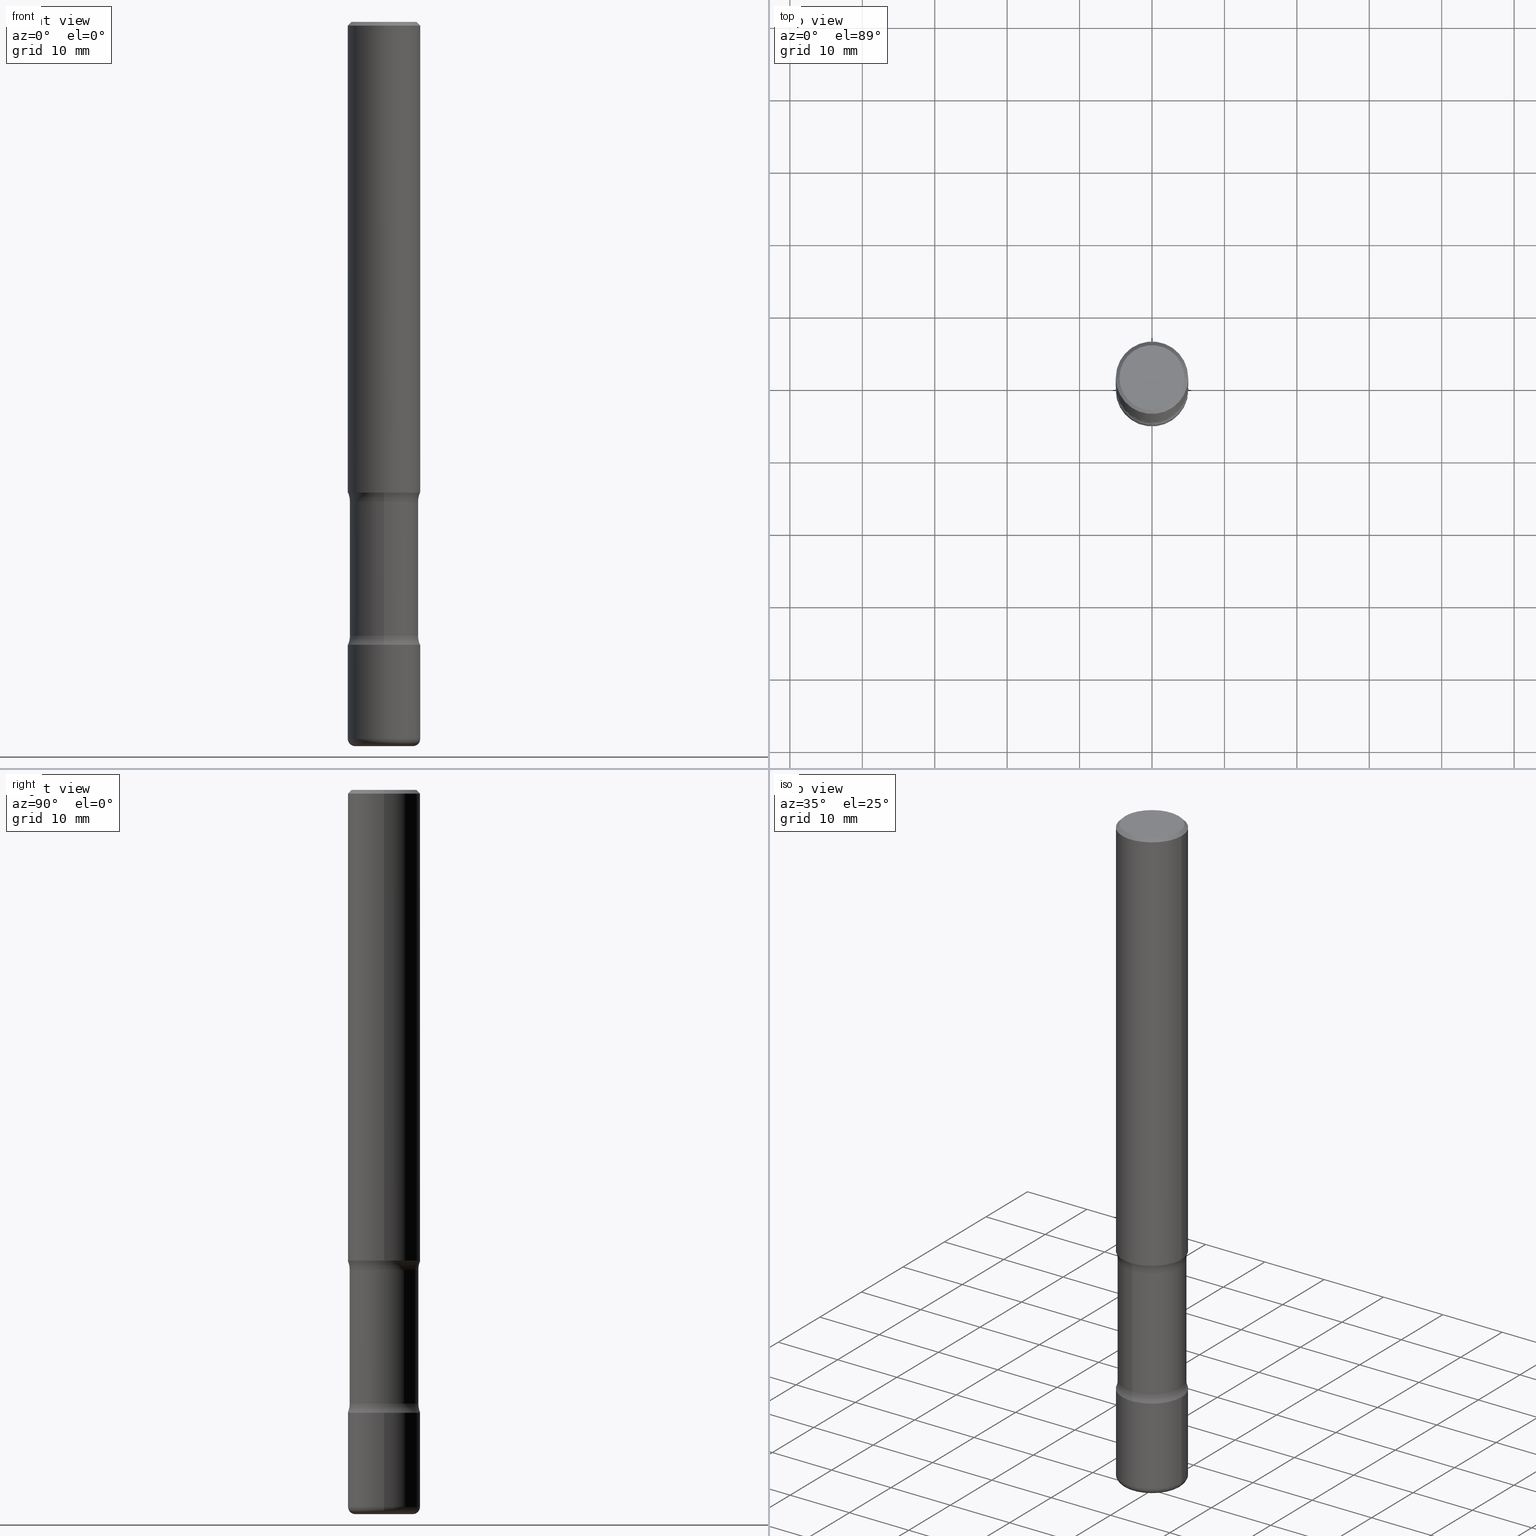
[diagram: canonical four-view strip — front | top / right | iso, engineering-drawing reading convention]
A machine part, canonical four-view strip (front | top / right | iso — engineering-drawing reading convention). The complete STEP part file that produces these views, byte-faithful:
ISO-10303-21;
HEADER;
FILE_DESCRIPTION (( 'STEP AP203' ),
    '1' );
FILE_NAME ('44779.STEP',
    '2024-03-02T03:10:26',
    ( '' ),
    ( '' ),
    'SwSTEP 2.0',
    'SolidWorks 2023',
    '' );
FILE_SCHEMA (( 'CONFIG_CONTROL_DESIGN' ));
ENDSEC;

DATA;
#1 = EDGE_CURVE ( 'NONE', #533, #75, #344, .T. ) ;
#2 = DIRECTION ( 'NONE',  ( 6.982962677686266711E-15, 1.000000000000000000, -2.927241354046892304E-15 ) ) ;
#3 = AXIS2_PLACEMENT_3D ( 'NONE', #111, #400, #6 ) ;
#4 = VECTOR ( 'NONE', #336, 39.37007874015748143 ) ;
#5 = EDGE_CURVE ( 'NONE', #75, #533, #189, .T. ) ;
#6 = DIRECTION ( 'NONE',  ( -1.000000000000000000, 6.982962677686265922E-15, -4.876176775795935793E-29 ) ) ;
#7 = CARTESIAN_POINT ( 'NONE',  ( 8.158923594815368929E-29, -1.164878055458961151E-14, -3.336343352317407973 ) ) ;
#8 = ORIENTED_EDGE ( 'NONE', *, *, #186, .F. ) ;
#9 = CALENDAR_DATE ( 2024, 1, 3 ) ;
#10 = DIRECTION ( 'NONE',  ( 1.000000000000000000, -6.982962677686269077E-15, 4.883557194083114022E-29 ) ) ;
#11 = AXIS2_PLACEMENT_3D ( 'NONE', #436, #255, #164 ) ;
#12 = CC_DESIGN_PERSON_AND_ORGANIZATION_ASSIGNMENT ( #386, #556, ( #85 ) ) ;
#13 = APPROVAL_DATE_TIME ( #110, #445 ) ;
#14 = VECTOR ( 'NONE', #139, 39.37007874015748143 ) ;
#15 = AXIS2_PLACEMENT_3D ( 'NONE', #68, #204, #20 ) ;
#16 = DIRECTION ( 'NONE',  ( 1.000000000000000000, -6.982962677686265133E-15, 0.000000000000000000 ) ) ;
#17 = DATE_AND_TIME ( #9, #149 ) ;
#18 = CARTESIAN_POINT ( 'NONE',  ( 4.890937612370289799E-31, -6.982962677686315028E-17, -0.02000000000000006981 ) ) ;
#19 = DIRECTION ( 'NONE',  ( 6.982962677686266711E-15, 1.000000000000000000, -2.927241354046893093E-15 ) ) ;
#20 = DIRECTION ( 'NONE',  ( 1.000000000000000000, -6.982962677686269077E-15, 4.883557194083114022E-29 ) ) ;
#21 = CALENDAR_DATE ( 2024, 1, 3 ) ;
#22 = EDGE_CURVE ( 'NONE', #365, #119, #503, .T. ) ;
#23 = DIRECTION ( 'NONE',  ( 2.445468806185136597E-29, -3.491481338843145583E-15, -1.000000000000000000 ) ) ;
#24 = CLOSED_SHELL ( 'NONE', ( #141, #277, #162, #430, #48, #87, #175, #236 ) ) ;
#25 = CARTESIAN_POINT ( 'NONE',  ( 8.279868283981634472E-29, -1.182145751705512057E-14, -3.385799999999999699 ) ) ;
#26 = AXIS2_PLACEMENT_3D ( 'NONE', #402, #180, #188 ) ;
#27 = AXIS2_PLACEMENT_3D ( 'NONE', #122, #495, #497 ) ;
#28 = DIRECTION ( 'NONE',  ( -6.982962677686266711E-15, -1.000000000000000000, 3.491481338843145583E-15 ) ) ;
#29 = ADVANCED_FACE ( 'NONE', ( #396 ), #528, .T. ) ;
#30 = ORIENTED_EDGE ( 'NONE', *, *, #373, .F. ) ;
#31 = EDGE_LOOP ( 'NONE', ( #404, #123 ) ) ;
#32 = LINE ( 'NONE', #343, #14 ) ;
#33 = CARTESIAN_POINT ( 'NONE',  ( 0.000000000000000000, 0.000000000000000000, 0.000000000000000000 ) ) ;
#34 = CARTESIAN_POINT ( 'NONE',  ( -1.315500491072630234E-15, -0.1866500000000093362, -2.608456647682591889 ) ) ;
#35 = ADVANCED_FACE ( 'NONE', ( #73 ), #521, .T. ) ;
#36 = EDGE_LOOP ( 'NONE', ( #427, #380, #44, #461 ) ) ;
#37 = DIRECTION ( 'NONE',  ( 1.000000000000000000, -6.982962677686266711E-15, 4.875932113059883053E-29 ) ) ;
#38 = AXIS2_PLACEMENT_3D ( 'NONE', #223, #438, #144 ) ;
#39 = AXIS2_PLACEMENT_3D ( 'NONE', #82, #554, #176 ) ;
#40 = ORIENTED_EDGE ( 'NONE', *, *, #79, .T. ) ;
#41 = ORIENTED_EDGE ( 'NONE', *, *, #314, .T. ) ;
#42 = APPLICATION_PROTOCOL_DEFINITION ( 'international standard', 'config_control_design', 1994, #90 ) ;
#43 = DESIGN_CONTEXT ( 'detailed design', #90, 'design' ) ;
#44 = ORIENTED_EDGE ( 'NONE', *, *, #500, .T. ) ;
#45 = PERSON_AND_ORGANIZATION ( #72, #520 ) ;
#46 = CLOSED_SHELL ( 'NONE', ( #35, #184, #226, #421, #482, #60 ) ) ;
#47 = TOROIDAL_SURFACE ( 'NONE', #361, 0.3116500000000000936, 0.1250000000000000278 ) ;
#48 = ADVANCED_FACE ( 'NONE', ( #508 ), #498, .F. ) ;
#49 = CIRCLE ( 'NONE', #105, 0.1250000000000000278 ) ;
#50 = PRODUCT_DEFINITION_SHAPE ( 'NONE', 'NONE',  #306 ) ;
#51 = DIRECTION ( 'NONE',  ( 1.000000000000000000, -6.982962677686265922E-15, 4.876176775795935793E-29 ) ) ;
#52 = DIRECTION ( 'NONE',  ( 1.000000000000000000, -6.982962677686266711E-15, 4.875932113059883053E-29 ) ) ;
#53 = DIRECTION ( 'NONE',  ( -1.000000000000000000, 6.982962677686265922E-15, -4.876176775795935793E-29 ) ) ;
#54 = DIRECTION ( 'NONE',  ( 1.000000000000000000, -6.982962677686269866E-15, 0.000000000000000000 ) ) ;
#55 = AXIS2_PLACEMENT_3D ( 'NONE', #322, #457, #202 ) ;
#56 = CC_DESIGN_APPROVAL ( #445, ( #106 ) ) ;
#57 = EDGE_LOOP ( 'NONE', ( #179, #63 ) ) ;
#58 = DIRECTION ( 'NONE',  ( -2.445468806185136597E-29, 3.491481338843145583E-15, 1.000000000000000000 ) ) ;
#59 = CARTESIAN_POINT ( 'NONE',  ( 1.916782435662395970E-28, -8.411947649234456076E-17, -3.937000000000000277 ) ) ;
#60 = ADVANCED_FACE ( 'NONE', ( #194 ), #452, .F. ) ;
#61 = EDGE_LOOP ( 'NONE', ( #158, #340 ) ) ;
#62 = DIRECTION ( 'NONE',  ( 6.982962677686266711E-15, 1.000000000000000000, -2.927241354046892699E-15 ) ) ;
#63 = ORIENTED_EDGE ( 'NONE', *, *, #205, .T. ) ;
#64 = PERSON_AND_ORGANIZATION ( #72, #520 ) ;
#65 = DIRECTION ( 'NONE',  ( -2.445468806185136597E-29, 3.491481338843145583E-15, 1.000000000000000000 ) ) ;
#66 = APPROVAL_STATUS ( 'not_yet_approved' ) ;
#67 = EDGE_LOOP ( 'NONE', ( #86, #259, #81, #439 ) ) ;
#68 = CARTESIAN_POINT ( 'NONE',  ( 9.531459218987189074E-29, -1.360839766627504420E-14, -3.897600000000000176 ) ) ;
#69 = EDGE_LOOP ( 'NONE', ( #88, #341, #417, #496 ) ) ;
#70 = ORIENTED_EDGE ( 'NONE', *, *, #79, .F. ) ;
#71 = CARTESIAN_POINT ( 'NONE',  ( 2.176240318500987949E-15, 0.3116499999999908788, -2.608456647682593665 ) ) ;
#72 = PERSON ( 'UNSPECIFIED', 'UNSPECIFIED', 'UNSPECIFIED', ('UNSPECIFIED'), ('UNSPECIFIED'), ('UNSPECIFIED') ) ;
#73 = FACE_OUTER_BOUND ( 'NONE', #67, .T. ) ;
#74 = LINE ( 'NONE', #489, #273 ) ;
#75 = VERTEX_POINT ( 'NONE', #161 ) ;
#76 = ADVANCED_FACE ( 'NONE', ( #317 ), #464, .T. ) ;
#77 = ORIENTED_EDGE ( 'NONE', *, *, #413, .T. ) ;
#78 = DIRECTION ( 'NONE',  ( -2.445468806185136597E-29, 3.491481338843145583E-15, 1.000000000000000000 ) ) ;
#79 = EDGE_CURVE ( 'NONE', #80, #215, #269, .T. ) ;
#80 = VERTEX_POINT ( 'NONE', #517 ) ;
#81 = ORIENTED_EDGE ( 'NONE', *, *, #287, .F. ) ;
#82 = CARTESIAN_POINT ( 'NONE',  ( 8.151697017269320442E-29, -1.165912942494680306E-14, -3.336343352317407973 ) ) ;
#83 = AXIS2_PLACEMENT_3D ( 'NONE', #18, #156, #284 ) ;
#84 = APPROVAL_PERSON_ORGANIZATION ( #192, #553, #274 ) ;
#85 = PRODUCT ( '44779', '44779', '', ( #294 ) ) ;
#86 = ORIENTED_EDGE ( 'NONE', *, *, #177, .T. ) ;
#87 = ADVANCED_FACE ( 'NONE', ( #555 ), #337, .F. ) ;
#88 = ORIENTED_EDGE ( 'NONE', *, *, #437, .F. ) ;
#89 = CARTESIAN_POINT ( 'NONE',  ( -0.1968500000000001082, -1.131622421632132460E-14, -3.385799999999999699 ) ) ;
#90 = APPLICATION_CONTEXT ( 'configuration controlled 3d designs of mechanical parts and assemblies' ) ;
#91 = EDGE_CURVE ( 'NONE', #385, #494, #32, .T. ) ;
#92 = FACE_OUTER_BOUND ( 'NONE', #257, .T. ) ;
#93 = COORDINATED_UNIVERSAL_TIME_OFFSET ( 5, 0, .BEHIND. ) ;
#94 = TOROIDAL_SURFACE ( 'NONE', #407, 0.1574500000000002009, 0.03939999999999977548 ) ;
#95 = AXIS2_PLACEMENT_3D ( 'NONE', #560, #208, #378 ) ;
#96 = PLANE ( 'NONE',  #3 ) ;
#97 = CARTESIAN_POINT ( 'NONE',  ( 0.1968499999999998307, -1.420318657638187938E-15, -0.02000000000000006981 ) ) ;
#98 = CC_DESIGN_PERSON_AND_ORGANIZATION_ASSIGNMENT ( #412, #316, ( #370 ) ) ;
#99 = CARTESIAN_POINT ( 'NONE',  ( 9.531459218987189074E-29, -1.360839766627504420E-14, -3.897600000000000176 ) ) ;
#100 = CYLINDRICAL_SURFACE ( 'NONE', #201, 0.1968499999999999694 ) ;
#101 = ORIENTED_EDGE ( 'NONE', *, *, #186, .T. ) ;
#102 = FACE_OUTER_BOUND ( 'NONE', #69, .T. ) ;
#103 = CARTESIAN_POINT ( 'NONE',  ( -1.043851414335219820E-46, 1.490343170380447200E-32, 4.268512490100411279E-18 ) ) ;
#104 = VECTOR ( 'NONE', #523, 39.37007874015748143 ) ;
#105 = AXIS2_PLACEMENT_3D ( 'NONE', #197, #153, #244 ) ;
#106 = PRODUCT_DEFINITION_FORMATION_WITH_SPECIFIED_SOURCE ( 'ANY', '', #85, .NOT_KNOWN. ) ;
#107 = CALENDAR_DATE ( 2024, 1, 3 ) ;
#108 = EDGE_LOOP ( 'NONE', ( #470, #360, #557, #448 ) ) ;
#109 = ORIENTED_EDGE ( 'NONE', *, *, #1, .F. ) ;
#110 = DATE_AND_TIME ( #107, #302 ) ;
#111 = CARTESIAN_POINT ( 'NONE',  ( 1.234936949548814815E-15, 0.1768499999999998129, -6.153342185293594620E-16 ) ) ;
#112 = PERSON_AND_ORGANIZATION ( #72, #520 ) ;
#113 = CARTESIAN_POINT ( 'NONE',  ( 6.283517401289684484E-29, -9.243970108248332967E-15, -2.608456647682592333 ) ) ;
#114 = AXIS2_PLACEMENT_3D ( 'NONE', #388, #262, #393 ) ;
#115 = APPROVAL_PERSON_ORGANIZATION ( #64, #445, #187 ) ;
#116 = EDGE_LOOP ( 'NONE', ( #253, #243, #383, #501 ) ) ;
#117 = CARTESIAN_POINT ( 'NONE',  ( 0.1968499999999998307, -1.420318657638187938E-15, -0.02000000000000006981 ) ) ;
#118 = CARTESIAN_POINT ( 'NONE',  ( 6.257954675027765161E-29, -8.934700746099610252E-15, -2.559000000000000163 ) ) ;
#119 = VERTEX_POINT ( 'NONE', #476 ) ;
#120 = VERTEX_POINT ( 'NONE', #97 ) ;
#121 = EDGE_CURVE ( 'NONE', #514, #206, #527, .T. ) ;
#122 = CARTESIAN_POINT ( 'NONE',  ( 2.176240318501006882E-15, 0.3116499999999883808, -3.336343352317409305 ) ) ;
#123 = ORIENTED_EDGE ( 'NONE', *, *, #22, .T. ) ;
#124 = DIRECTION ( 'NONE',  ( 1.000000000000000000, -6.982962677686266711E-15, 4.876176775795935793E-29 ) ) ;
#125 = CARTESIAN_POINT ( 'NONE',  ( 9.531459218987189074E-29, -1.360839766627504420E-14, -3.897600000000000176 ) ) ;
#126 = CARTESIAN_POINT ( 'NONE',  ( 9.627810689950881427E-29, -1.374596203102546184E-14, -3.936999999999999389 ) ) ;
#127 = CIRCLE ( 'NONE', #441, 0.1968500000000001082 ) ;
#128 = AXIS2_PLACEMENT_3D ( 'NONE', #113, #535, #319 ) ;
#129 = EDGE_CURVE ( 'NONE', #182, #456, #333, .T. ) ;
#130 = DIRECTION ( 'NONE',  ( -2.445468806185136877E-29, 3.491481338843145188E-15, 1.000000000000000000 ) ) ;
#131 = ORIENTED_EDGE ( 'NONE', *, *, #472, .F. ) ;
#132 = CARTESIAN_POINT ( 'NONE',  ( -0.1574500000000002009, -1.248964812882076424E-14, -3.897600000000000176 ) ) ;
#133 = ORIENTED_EDGE ( 'NONE', *, *, #268, .F. ) ;
#134 = EDGE_CURVE ( 'NONE', #494, #135, #127, .T. ) ;
#135 = VERTEX_POINT ( 'NONE', #169 ) ;
#136 = CARTESIAN_POINT ( 'NONE',  ( 1.303369983790204808E-15, 0.1866499999999908233, -2.608456647682592777 ) ) ;
#137 = AXIS2_PLACEMENT_3D ( 'NONE', #198, #238, #454 ) ;
#138 = ADVANCED_FACE ( 'NONE', ( #216 ), #100, .T. ) ;
#139 = DIRECTION ( 'NONE',  ( -2.445468806185136877E-29, 3.491481338843145188E-15, 1.000000000000000000 ) ) ;
#140 = APPROVAL_ROLE ( '' ) ;
#141 = ADVANCED_FACE ( 'NONE', ( #483 ), #266, .T. ) ;
#142 = CARTESIAN_POINT ( 'NONE',  ( -0.1968499999999998307, 1.304766576325677324E-15, -0.02000000000000006981 ) ) ;
#143 = DIRECTION ( 'NONE',  ( 6.982962677686265922E-15, 1.000000000000000000, -2.775563112689115117E-15 ) ) ;
#144 = DIRECTION ( 'NONE',  ( 6.982962677686265922E-15, 1.000000000000000000, -3.282229987566573640E-15 ) ) ;
#145 = ORIENTED_EDGE ( 'NONE', *, *, #328, .T. ) ;
#146 = DIRECTION ( 'NONE',  ( 2.591588243807108620E-29, -3.282229987566573640E-15, -1.000000000000000000 ) ) ;
#147 = DIRECTION ( 'NONE',  ( -2.445468806185136597E-29, 3.491481338843145583E-15, 1.000000000000000000 ) ) ;
#148 = AXIS2_PLACEMENT_3D ( 'NONE', #526, #147, #487 ) ;
#149 = LOCAL_TIME ( 22, 10, 26.00000000000000000, #410 ) ;
#150 = DIRECTION ( 'NONE',  ( 1.000000000000000000, -6.982962677686263555E-15, 0.000000000000000000 ) ) ;
#151 = DATE_TIME_ROLE ( 'classification_date' ) ;
#152 = CARTESIAN_POINT ( 'NONE',  ( 1.374596203102624439E-15, 0.1968499999999882288, -3.385800000000000143 ) ) ;
#153 = DIRECTION ( 'NONE',  ( 1.000000000000000000, -6.860497997771530774E-15, 4.843361469599724329E-29 ) ) ;
#154 = PERSON_AND_ORGANIZATION ( #72, #520 ) ;
#155 = VECTOR ( 'NONE', #525, 39.37007874015748143 ) ;
#156 = DIRECTION ( 'NONE',  ( 2.445468806185136597E-29, -3.491481338843145583E-15, -1.000000000000000000 ) ) ;
#157 = DIRECTION ( 'NONE',  ( -1.000000000000000000, 6.982962677686266711E-15, 0.000000000000000000 ) ) ;
#158 = ORIENTED_EDGE ( 'NONE', *, *, #314, .F. ) ;
#159 = DIRECTION ( 'NONE',  ( -2.445468806185136597E-29, 3.491481338843145583E-15, 1.000000000000000000 ) ) ;
#160 = CARTESIAN_POINT ( 'NONE',  ( 8.158923594815368929E-29, -1.164878055458961151E-14, -3.336343352317407973 ) ) ;
#161 = CARTESIAN_POINT ( 'NONE',  ( 0.1574500000000002009, -1.484542950462716817E-14, -3.936999999999999389 ) ) ;
#162 = ADVANCED_FACE ( 'NONE', ( #394 ), #398, .F. ) ;
#163 = CARTESIAN_POINT ( 'NONE',  ( 8.279868283981634472E-29, -1.182145751705512057E-14, -3.385799999999999699 ) ) ;
#164 = DIRECTION ( 'NONE',  ( 1.000000000000000000, -6.982962677686269866E-15, 0.000000000000000000 ) ) ;
#165 = AXIS2_PLACEMENT_3D ( 'NONE', #267, #359, #51 ) ;
#166 = AXIS2_PLACEMENT_3D ( 'NONE', #132, #260, #426 ) ;
#167 = ORIENTED_EDGE ( 'NONE', *, *, #261, .T. ) ;
#168 =( LENGTH_UNIT ( ) NAMED_UNIT ( * ) SI_UNIT ( $, .METRE. ) );
#169 = CARTESIAN_POINT ( 'NONE',  ( 0.1968500000000001082, -1.319605372015766376E-14, -3.385799999999999699 ) ) ;
#170 = DIRECTION ( 'NONE',  ( -2.445468806185136597E-29, 3.491481338843145583E-15, 1.000000000000000000 ) ) ;
#171 = CARTESIAN_POINT ( 'NONE',  ( 1.303369983790238926E-15, 0.1866499999999864101, -3.937000000000000721 ) ) ;
#172 = EDGE_CURVE ( 'NONE', #543, #507, #428, .T. ) ;
#173 = ORIENTED_EDGE ( 'NONE', *, *, #275, .T. ) ;
#174 = CARTESIAN_POINT ( 'NONE',  ( 0.000000000000000000, 0.000000000000000000, 0.000000000000000000 ) ) ;
#175 = ADVANCED_FACE ( 'NONE', ( #102 ), #491, .F. ) ;
#176 = DIRECTION ( 'NONE',  ( 6.982962677686266711E-15, 1.000000000000000000, -2.927241354046893093E-15 ) ) ;
#177 = EDGE_CURVE ( 'NONE', #293, #385, #309, .T. ) ;
#178 = CARTESIAN_POINT ( 'NONE',  ( 1.303369983790223149E-15, 0.1866499999999883530, -3.336343352317408861 ) ) ;
#179 = ORIENTED_EDGE ( 'NONE', *, *, #469, .T. ) ;
#180 = DIRECTION ( 'NONE',  ( 2.591588243807108620E-29, -3.282229987566573640E-15, -1.000000000000000000 ) ) ;
#181 = AXIS2_PLACEMENT_3D ( 'NONE', #118, #531, #232 ) ;
#182 = VERTEX_POINT ( 'NONE', #178 ) ;
#183 = LINE ( 'NONE', #357, #104 ) ;
#184 = ADVANCED_FACE ( 'NONE', ( #310 ), #94, .T. ) ;
#185 = DIRECTION ( 'NONE',  ( 2.591588243807108620E-29, -3.282229987566573640E-15, -1.000000000000000000 ) ) ;
#186 = EDGE_CURVE ( 'NONE', #215, #80, #280, .T. ) ;
#187 = APPROVAL_ROLE ( '' ) ;
#188 = DIRECTION ( 'NONE',  ( 6.982962677686266711E-15, 1.000000000000000000, -2.927241354046892699E-15 ) ) ;
#189 = CIRCLE ( 'NONE', #263, 0.1574500000000002009 ) ;
#190 = AXIS2_PLACEMENT_3D ( 'NONE', #103, #403, #52 ) ;
#191 = AXIS2_PLACEMENT_3D ( 'NONE', #242, #23, #157 ) ;
#192 = PERSON_AND_ORGANIZATION ( #72, #520 ) ;
#193 = CARTESIAN_POINT ( 'NONE',  ( -0.1968499999999999694, 1.398703375343756999E-15, -9.682923725166782276E-30 ) ) ;
#194 = FACE_OUTER_BOUND ( 'NONE', #251, .T. ) ;
#195 = APPROVAL_STATUS ( 'not_yet_approved' ) ;
#196 = DIRECTION ( 'NONE',  ( 1.000000000000000000, -6.982962677686266711E-15, 4.876176775795935793E-29 ) ) ;
#197 = CARTESIAN_POINT ( 'NONE',  ( -2.138074201005416717E-15, -0.3116500000000117510, -3.336343352317407085 ) ) ;
#198 = CARTESIAN_POINT ( 'NONE',  ( 8.279868283981634472E-29, -1.182145751705512057E-14, -3.385799999999999699 ) ) ;
#199 = DATE_AND_TIME ( #21, #529 ) ;
#200 = CARTESIAN_POINT ( 'NONE',  ( -1.315500491072608935E-15, -0.1866500000000116399, -3.336343352317407529 ) ) ;
#201 = AXIS2_PLACEMENT_3D ( 'NONE', #460, #419, #224 ) ;
#202 = DIRECTION ( 'NONE',  ( 1.000000000000000000, -6.982962677686265133E-15, 0.000000000000000000 ) ) ;
#203 = VERTEX_POINT ( 'NONE', #142 ) ;
#204 = DIRECTION ( 'NONE',  ( -2.445468806185136597E-29, 3.491481338843145583E-15, 1.000000000000000000 ) ) ;
#205 = EDGE_CURVE ( 'NONE', #541, #292, #301, .T. ) ;
#206 = VERTEX_POINT ( 'NONE', #353 ) ;
#207 = ORIENTED_EDGE ( 'NONE', *, *, #261, .F. ) ;
#208 = DIRECTION ( 'NONE',  ( -2.445468806185136597E-29, 3.491481338843145583E-15, 1.000000000000000000 ) ) ;
#209 = DIRECTION ( 'NONE',  ( -6.982962677686265922E-15, -1.000000000000000000, 3.282229987566573640E-15 ) ) ;
#210 = CIRCLE ( 'NONE', #323, 0.03939999999999978936 ) ;
#211 = CIRCLE ( 'NONE', #465, 0.1768499999999998129 ) ;
#212 = ORIENTED_EDGE ( 'NONE', *, *, #442, .T. ) ;
#213 = DIRECTION ( 'NONE',  ( 2.591588243807108620E-29, -3.282229987566573640E-15, -1.000000000000000000 ) ) ;
#214 = EDGE_CURVE ( 'NONE', #206, #120, #488, .T. ) ;
#215 = VERTEX_POINT ( 'NONE', #446 ) ;
#216 = FACE_OUTER_BOUND ( 'NONE', #217, .T. ) ;
#217 = EDGE_LOOP ( 'NONE', ( #41, #297, #325, #484 ) ) ;
#218 = CARTESIAN_POINT ( 'NONE',  ( 0.000000000000000000, 0.000000000000000000, 0.000000000000000000 ) ) ;
#219 = AXIS2_PLACEMENT_3D ( 'NONE', #499, #422, #209 ) ;
#220 = APPROVAL_STATUS ( 'not_yet_approved' ) ;
#221 = VECTOR ( 'NONE', #558, 39.37007874015748143 ) ;
#222 = ADVANCED_FACE ( 'NONE', ( #305 ), #227, .F. ) ;
#223 = CARTESIAN_POINT ( 'NONE',  ( 6.283517401289684484E-29, -9.243970108248332967E-15, -2.608456647682592333 ) ) ;
#224 = DIRECTION ( 'NONE',  ( 1.000000000000000000, -6.982962677686266711E-15, 4.876176775795935793E-29 ) ) ;
#225 = AXIS2_PLACEMENT_3D ( 'NONE', #371, #366, #19 ) ;
#226 = ADVANCED_FACE ( 'NONE', ( #315 ), #447, .T. ) ;
#227 = PLANE ( 'NONE',  #165 ) ;
#228 = DATE_TIME_ROLE ( 'creation_date' ) ;
#229 = CYLINDRICAL_SURFACE ( 'NONE', #254, 0.1866500000000000381 ) ;
#230 = COORDINATED_UNIVERSAL_TIME_OFFSET ( 5, 0, .BEHIND. ) ;
#231 = DIRECTION ( 'NONE',  ( -2.445468806185136597E-29, 3.491481338843145583E-15, 1.000000000000000000 ) ) ;
#232 = DIRECTION ( 'NONE',  ( 6.982962677686265922E-15, 1.000000000000000000, -3.282229987566573640E-15 ) ) ;
#233 = AXIS2_PLACEMENT_3D ( 'NONE', #332, #65, #372 ) ;
#234 = LOCAL_TIME ( 22, 10, 26.00000000000000000, #300 ) ;
#235 = DIRECTION ( 'NONE',  ( -2.445468806185136597E-29, 3.491481338843145583E-15, 1.000000000000000000 ) ) ;
#236 = ADVANCED_FACE ( 'NONE', ( #270 ), #229, .T. ) ;
#237 = APPROVAL_DATE_TIME ( #435, #335 ) ;
#238 = DIRECTION ( 'NONE',  ( 2.438088387897960049E-29, -3.491481338843145188E-15, -1.000000000000000000 ) ) ;
#239 = CARTESIAN_POINT ( 'NONE',  ( 0.1768499999999998129, -1.316798864272041155E-15, 4.268512490109333727E-18 ) ) ;
#240 = DATE_AND_TIME ( #537, #281 ) ;
#241 = ORIENTED_EDGE ( 'NONE', *, *, #345, .F. ) ;
#242 = CARTESIAN_POINT ( 'NONE',  ( 4.890937612370289799E-31, -6.982962677686315028E-17, -0.02000000000000006981 ) ) ;
#243 = ORIENTED_EDGE ( 'NONE', *, *, #515, .T. ) ;
#244 = DIRECTION ( 'NONE',  ( 6.860497997771529985E-15, 1.000000000000000000, 0.000000000000000000 ) ) ;
#245 = CIRCLE ( 'NONE', #432, 0.1968500000000001082 ) ;
#246 = APPROVAL_PERSON_ORGANIZATION ( #45, #335, #140 ) ;
#247 = DIRECTION ( 'NONE',  ( 1.000000000000000000, -6.982962677686265133E-15, 0.000000000000000000 ) ) ;
#248 = FACE_OUTER_BOUND ( 'NONE', #339, .T. ) ;
#249 = DIRECTION ( 'NONE',  ( 6.982962677686265922E-15, 1.000000000000000000, -2.775563112689115117E-15 ) ) ;
#250 = ADVANCED_FACE ( 'NONE', ( #530 ), #96, .F. ) ;
#251 = EDGE_LOOP ( 'NONE', ( #312, #516 ) ) ;
#252 =( NAMED_UNIT ( * ) PLANE_ANGLE_UNIT ( ) SI_UNIT ( $, .RADIAN. ) );
#253 = ORIENTED_EDGE ( 'NONE', *, *, #5, .T. ) ;
#254 = AXIS2_PLACEMENT_3D ( 'NONE', #475, #362, #62 ) ;
#255 = DIRECTION ( 'NONE',  ( -2.445468806185136597E-29, 3.491481338843145583E-15, 1.000000000000000000 ) ) ;
#256 = TOROIDAL_SURFACE ( 'NONE', #15, 0.1574500000000002009, 0.03939999999999977548 ) ;
#257 = EDGE_LOOP ( 'NONE', ( #374, #492, #77, #352 ) ) ;
#258 = DIRECTION ( 'NONE',  ( 0.000000000000000000, 0.000000000000000000, 1.000000000000000000 ) ) ;
#259 = ORIENTED_EDGE ( 'NONE', *, *, #91, .T. ) ;
#260 = DIRECTION ( 'NONE',  ( 7.105427357601001859E-15, 1.000000000000000000, -3.491481338843145583E-15 ) ) ;
#261 = EDGE_CURVE ( 'NONE', #119, #203, #183, .T. ) ;
#262 = DIRECTION ( 'NONE',  ( 2.591588243807108620E-29, -3.282229987566573640E-15, -1.000000000000000000 ) ) ;
#263 = AXIS2_PLACEMENT_3D ( 'NONE', #126, #235, #54 ) ;
#264 = ORIENTED_EDGE ( 'NONE', *, *, #129, .F. ) ;
#265 = AXIS2_PLACEMENT_3D ( 'NONE', #174, #78, #342 ) ;
#266 = CYLINDRICAL_SURFACE ( 'NONE', #26, 0.1866500000000000381 ) ;
#267 = CARTESIAN_POINT ( 'NONE',  ( 6.257954675027765161E-29, -8.934700746099610252E-15, -2.559000000000000163 ) ) ;
#268 = EDGE_CURVE ( 'NONE', #507, #543, #473, .T. ) ;
#269 = CIRCLE ( 'NONE', #114, 0.1968500000000002748 ) ;
#270 = FACE_OUTER_BOUND ( 'NONE', #36, .T. ) ;
#271 = CIRCLE ( 'NONE', #27, 0.1250000000000000278 ) ;
#272 = ORIENTED_EDGE ( 'NONE', *, *, #205, .F. ) ;
#273 = VECTOR ( 'NONE', #414, 39.37007874015748143 ) ;
#274 = APPROVAL_ROLE ( '' ) ;
#275 = EDGE_CURVE ( 'NONE', #75, #293, #210, .T. ) ;
#276 = CARTESIAN_POINT ( 'NONE',  ( 6.137143124001919052E-29, -9.107709763335080543E-15, -2.559000000000000163 ) ) ;
#277 = ADVANCED_FACE ( 'NONE', ( #248 ), #47, .F. ) ;
#278 = DIMENSIONAL_EXPONENTS ( 1.000000000000000000, 0.000000000000000000, 0.000000000000000000, 0.000000000000000000, 0.000000000000000000, 0.000000000000000000, 0.000000000000000000 ) ;
#279 = DIRECTION ( 'NONE',  ( 6.982962677686265922E-15, 1.000000000000000000, -3.282229987566573640E-15 ) ) ;
#280 = CIRCLE ( 'NONE', #538, 0.1968500000000002748 ) ;
#281 = LOCAL_TIME ( 22, 10, 26.00000000000000000, #93 ) ;
#282 = PERSON_AND_ORGANIZATION_ROLE ( 'creator' ) ;
#283 = DIRECTION ( 'NONE',  ( 0.7071067811865466846, -7.319954787623252890E-15, -0.7071067811865483499 ) ) ;
#284 = DIRECTION ( 'NONE',  ( -1.000000000000000000, 6.982962677686266711E-15, 0.000000000000000000 ) ) ;
#285 = CARTESIAN_POINT ( 'NONE',  ( 0.000000000000000000, 0.000000000000000000, 0.000000000000000000 ) ) ;
#286 = DIRECTION ( 'NONE',  ( 6.860497997771532351E-15, 1.000000000000000000, 0.000000000000000000 ) ) ;
#287 = EDGE_CURVE ( 'NONE', #135, #494, #245, .T. ) ;
#288 = CARTESIAN_POINT ( 'NONE',  ( 0.1574500000000002009, -1.470786513987674896E-14, -3.897600000000000176 ) ) ;
#289 = AXIS2_PLACEMENT_3D ( 'NONE', #443, #408, #290 ) ;
#290 = DIRECTION ( 'NONE',  ( 6.982962677686266711E-15, 1.000000000000000000, -2.927241354046892304E-15 ) ) ;
#291 = LENGTH_MEASURE_WITH_UNIT ( LENGTH_MEASURE( 0.02539999999999999897 ), #168 );
#292 = VERTEX_POINT ( 'NONE', #152 ) ;
#293 = VERTEX_POINT ( 'NONE', #450 ) ;
#294 = MECHANICAL_CONTEXT ( 'NONE', #546, 'mechanical' ) ;
#295 = CIRCLE ( 'NONE', #55, 0.1968500000000001082 ) ;
#296 = EDGE_LOOP ( 'NONE', ( #303, #552, #145, #101 ) ) ;
#297 = ORIENTED_EDGE ( 'NONE', *, *, #389, .T. ) ;
#298 = DIRECTION ( 'NONE',  ( 1.000000000000000000, 0.000000000000000000, 0.000000000000000000 ) ) ;
#299 = EDGE_CURVE ( 'NONE', #120, #203, #369, .T. ) ;
#300 = COORDINATED_UNIVERSAL_TIME_OFFSET ( 5, 0, .BEHIND. ) ;
#301 = CIRCLE ( 'NONE', #519, 0.1968500000000001082 ) ;
#302 = LOCAL_TIME ( 22, 10, 26.00000000000000000, #406 ) ;
#303 = ORIENTED_EDGE ( 'NONE', *, *, #405, .F. ) ;
#304 = DIRECTION ( 'NONE',  ( 2.591588243807108620E-29, -3.282229987566573640E-15, -1.000000000000000000 ) ) ;
#305 = FACE_OUTER_BOUND ( 'NONE', #61, .T. ) ;
#306 = PRODUCT_DEFINITION ( 'UNKNOWN', '', #106, #43 ) ;
#307 = CARTESIAN_POINT ( 'NONE',  ( 9.531459218987189074E-29, -1.360839766627504420E-14, -3.897600000000000176 ) ) ;
#308 = PERSON_AND_ORGANIZATION_ROLE ( 'creator' ) ;
#309 = CIRCLE ( 'NONE', #390, 0.1968500000000001360 ) ;
#310 = FACE_OUTER_BOUND ( 'NONE', #116, .T. ) ;
#311 = CIRCLE ( 'NONE', #95, 0.1968499999999998307 ) ;
#312 = ORIENTED_EDGE ( 'NONE', *, *, #287, .T. ) ;
#313 = ORIENTED_EDGE ( 'NONE', *, *, #5, .F. ) ;
#314 = EDGE_CURVE ( 'NONE', #206, #514, #295, .T. ) ;
#315 = FACE_OUTER_BOUND ( 'NONE', #466, .T. ) ;
#316 = PERSON_AND_ORGANIZATION_ROLE ( 'classification_officer' ) ;
#317 = FACE_OUTER_BOUND ( 'NONE', #349, .T. ) ;
#318 = MANIFOLD_SOLID_BREP ( 'Body-Move/Copy2[1]', #46 ) ;
#319 = DIRECTION ( 'NONE',  ( 6.982962677686265922E-15, 1.000000000000000000, -3.282229987566573640E-15 ) ) ;
#320 = SECURITY_CLASSIFICATION_LEVEL ( 'unclassified' ) ;
#321 = ORIENTED_EDGE ( 'NONE', *, *, #534, .T. ) ;
#322 = CARTESIAN_POINT ( 'NONE',  ( 6.257954675027765161E-29, -8.934700746099610252E-15, -2.559000000000000163 ) ) ;
#323 = AXIS2_PLACEMENT_3D ( 'NONE', #288, #28, #329 ) ;
#324 = TOROIDAL_SURFACE ( 'NONE', #128, 0.3116500000000000936, 0.1250000000000000278 ) ;
#325 = ORIENTED_EDGE ( 'NONE', *, *, #299, .F. ) ;
#326 = CARTESIAN_POINT ( 'NONE',  ( -1.280511951283959495E-15, -0.1866500000000136661, -3.936999999999999389 ) ) ;
#327 = EDGE_LOOP ( 'NONE', ( #331, #131, #167, #321 ) ) ;
#328 = EDGE_CURVE ( 'NONE', #543, #215, #513, .T. ) ;
#329 = DIRECTION ( 'NONE',  ( 1.000000000000000000, -6.982962677686266711E-15, 0.000000000000000000 ) ) ;
#330 = EDGE_LOOP ( 'NONE', ( #133, #480, #40, #506 ) ) ;
#331 = ORIENTED_EDGE ( 'NONE', *, *, #442, .F. ) ;
#332 = CARTESIAN_POINT ( 'NONE',  ( 4.890937612370289799E-31, -6.982962677686315028E-17, -0.02000000000000006981 ) ) ;
#333 = CIRCLE ( 'NONE', #225, 0.1866500000000000103 ) ;
#334 = CIRCLE ( 'NONE', #166, 0.03939999999999978936 ) ;
#335 = APPROVAL ( #220, 'UNSPECIFIED' ) ;
#336 = DIRECTION ( 'NONE',  ( 2.591588243807108620E-29, -3.282229987566573640E-15, -1.000000000000000000 ) ) ;
#337 = PLANE ( 'NONE',  #219 ) ;
#338 = MANIFOLD_SOLID_BREP ( 'Body-Move/Copy2[4]', #24 ) ;
#339 = EDGE_LOOP ( 'NONE', ( #272, #424, #415, #241 ) ) ;
#340 = ORIENTED_EDGE ( 'NONE', *, *, #121, .F. ) ;
#341 = ORIENTED_EDGE ( 'NONE', *, *, #469, .F. ) ;
#342 = DIRECTION ( 'NONE',  ( 1.000000000000000000, -6.982962677686266711E-15, 4.876176775795935793E-29 ) ) ;
#343 = CARTESIAN_POINT ( 'NONE',  ( -0.1968500000000001082, 1.398703375343757985E-15, -9.682923725166787881E-30 ) ) ;
#344 = CIRCLE ( 'NONE', #11, 0.1574500000000002009 ) ;
#345 = EDGE_CURVE ( 'NONE', #292, #182, #271, .T. ) ;
#346 = AXIS2_PLACEMENT_3D ( 'NONE', #59, #479, #53 ) ;
#347 = CC_DESIGN_APPROVAL ( #553, ( #370 ) ) ;
#348 = VECTOR ( 'NONE', #130, 39.37007874015748143 ) ;
#349 = EDGE_LOOP ( 'NONE', ( #425, #212, #510, #207 ) ) ;
#350 = CARTESIAN_POINT ( 'NONE',  ( 8.279868283981634472E-29, -1.182145751705512057E-14, -3.385799999999999699 ) ) ;
#351 = PRODUCT_RELATED_PRODUCT_CATEGORY ( 'detail', '', ( #85 ) ) ;
#352 = ORIENTED_EDGE ( 'NONE', *, *, #134, .F. ) ;
#353 = CARTESIAN_POINT ( 'NONE',  ( 0.1968500000000001082, -1.030929694920215344E-14, -2.559000000000000163 ) ) ;
#354 = AXIS2_PLACEMENT_3D ( 'NONE', #33, #547, #196 ) ;
#355 = CC_DESIGN_PERSON_AND_ORGANIZATION_ASSIGNMENT ( #112, #308, ( #306 ) ) ;
#356 = DIRECTION ( 'NONE',  ( 6.982962677686265922E-15, 1.000000000000000000, -2.775563112689112751E-15 ) ) ;
#357 = CARTESIAN_POINT ( 'NONE',  ( -0.1968499999999998307, 1.304766576325677324E-15, -0.02000000000000006981 ) ) ;
#358 = CALENDAR_DATE ( 2024, 1, 3 ) ;
#359 = DIRECTION ( 'NONE',  ( -2.438088387897960049E-29, 3.491481338843145188E-15, 1.000000000000000000 ) ) ;
#360 = ORIENTED_EDGE ( 'NONE', *, *, #121, .T. ) ;
#361 = AXIS2_PLACEMENT_3D ( 'NONE', #160, #542, #279 ) ;
#362 = DIRECTION ( 'NONE',  ( 2.591588243807108620E-29, -3.282229987566573640E-15, -1.000000000000000000 ) ) ;
#363 = CIRCLE ( 'NONE', #39, 0.1866500000000000103 ) ;
#364 = ORIENTED_EDGE ( 'NONE', *, *, #1, .T. ) ;
#365 = VERTEX_POINT ( 'NONE', #239 ) ;
#366 = DIRECTION ( 'NONE',  ( 2.591588243807108620E-29, -3.282229987566573640E-15, -1.000000000000000000 ) ) ;
#367 = CARTESIAN_POINT ( 'NONE',  ( -0.1968500000000000527, -1.220969429093128562E-14, -3.897600000000000176 ) ) ;
#368 = LINE ( 'NONE', #326, #221 ) ;
#369 = CIRCLE ( 'NONE', #233, 0.1968499999999998307 ) ;
#370 = SECURITY_CLASSIFICATION ( '', '', #320 ) ;
#371 = CARTESIAN_POINT ( 'NONE',  ( 8.151697017269320442E-29, -1.165912942494680306E-14, -3.336343352317407973 ) ) ;
#372 = DIRECTION ( 'NONE',  ( 1.000000000000000000, -6.982962677686266711E-15, 0.000000000000000000 ) ) ;
#373 = EDGE_CURVE ( 'NONE', #385, #293, #481, .T. ) ;
#374 = ORIENTED_EDGE ( 'NONE', *, *, #91, .F. ) ;
#375 = DIRECTION ( 'NONE',  ( 1.000000000000000000, -6.860497997771530774E-15, 4.843361469599724329E-29 ) ) ;
#376 = CC_DESIGN_DATE_AND_TIME_ASSIGNMENT ( #17, #151, ( #370 ) ) ;
#377 = UNCERTAINTY_MEASURE_WITH_UNIT (LENGTH_MEASURE( 1.000000000000000082E-05 ), #467, 'distance_accuracy_value', 'NONE');
#378 = DIRECTION ( 'NONE',  ( 1.000000000000000000, -6.982962677686266711E-15, 0.000000000000000000 ) ) ;
#379 = AXIS2_PLACEMENT_3D ( 'NONE', #285, #159, #124 ) ;
#380 = ORIENTED_EDGE ( 'NONE', *, *, #268, .T. ) ;
#381 = CC_DESIGN_SECURITY_CLASSIFICATION ( #370, ( #106 ) ) ;
#382 = EDGE_LOOP ( 'NONE', ( #478, #364, #173, #30 ) ) ;
#383 = ORIENTED_EDGE ( 'NONE', *, *, #177, .F. ) ;
#384 = CARTESIAN_POINT ( 'NONE',  ( -0.1968500000000001082, -3.103561811094476227E-15, -2.559000000000000163 ) ) ;
#385 = VERTEX_POINT ( 'NONE', #367 ) ;
#386 = PERSON_AND_ORGANIZATION ( #72, #520 ) ;
#387 = EDGE_LOOP ( 'NONE', ( #429, #485, #264, #434 ) ) ;
#388 = CARTESIAN_POINT ( 'NONE',  ( 6.137143124001919052E-29, -9.107709763335080543E-15, -2.559000000000000163 ) ) ;
#389 = EDGE_CURVE ( 'NONE', #514, #203, #539, .T. ) ;
#390 = AXIS2_PLACEMENT_3D ( 'NONE', #307, #58, #150 ) ;
#391 = CIRCLE ( 'NONE', #504, 0.1968500000000001082 ) ;
#392 = CARTESIAN_POINT ( 'NONE',  ( -1.350489030861243387E-15, -0.1968500000000119043, -3.385799999999999255 ) ) ;
#393 = DIRECTION ( 'NONE',  ( 6.982962677686265922E-15, 1.000000000000000000, -2.775563112689112751E-15 ) ) ;
#394 = FACE_OUTER_BOUND ( 'NONE', #330, .T. ) ;
#395 = DIRECTION ( 'NONE',  ( 2.591588243807108620E-29, -3.282229987566573640E-15, -1.000000000000000000 ) ) ;
#396 = FACE_OUTER_BOUND ( 'NONE', #108, .T. ) ;
#397 = CLOSED_SHELL ( 'NONE', ( #138, #76, #453, #250, #222, #29 ) ) ;
#398 = TOROIDAL_SURFACE ( 'NONE', #38, 0.3116500000000000936, 0.1250000000000000278 ) ;
#399 = AXIS2_PLACEMENT_3D ( 'NONE', #459, #375, #286 ) ;
#400 = DIRECTION ( 'NONE',  ( 2.438088387897960049E-29, -3.491481338843145188E-15, -1.000000000000000000 ) ) ;
#401 = CARTESIAN_POINT ( 'NONE',  ( 6.265314390714234203E-29, -9.270037855443396476E-15, -2.608456647682592333 ) ) ;
#402 = CARTESIAN_POINT ( 'NONE',  ( 9.708351723968114409E-29, -1.363062268620181866E-14, -3.937000000000000277 ) ) ;
#403 = DIRECTION ( 'NONE',  ( -2.445468806185136597E-29, 3.491481338843145583E-15, 1.000000000000000000 ) ) ;
#404 = ORIENTED_EDGE ( 'NONE', *, *, #472, .T. ) ;
#405 = EDGE_CURVE ( 'NONE', #507, #80, #409, .T. ) ;
#406 = COORDINATED_UNIVERSAL_TIME_OFFSET ( 5, 0, .BEHIND. ) ;
#407 = AXIS2_PLACEMENT_3D ( 'NONE', #99, #440, #10 ) ;
#408 = DIRECTION ( 'NONE',  ( 2.591588243807108620E-29, -3.282229987566573640E-15, -1.000000000000000000 ) ) ;
#409 = CIRCLE ( 'NONE', #399, 0.1250000000000000278 ) ;
#410 = COORDINATED_UNIVERSAL_TIME_OFFSET ( 5, 0, .BEHIND. ) ;
#411 = DIRECTION ( 'NONE',  ( -2.445468806185136597E-29, 3.491481338843145583E-15, 1.000000000000000000 ) ) ;
#412 = PERSON_AND_ORGANIZATION ( #72, #520 ) ;
#413 = EDGE_CURVE ( 'NONE', #293, #135, #74, .T. ) ;
#414 = DIRECTION ( 'NONE',  ( -2.445468806185136877E-29, 3.491481338843145188E-15, 1.000000000000000000 ) ) ;
#415 = ORIENTED_EDGE ( 'NONE', *, *, #540, .T. ) ;
#416 = AXIS2_PLACEMENT_3D ( 'NONE', #71, #545, #458 ) ;
#417 = ORIENTED_EDGE ( 'NONE', *, *, #345, .T. ) ;
#418 =( GEOMETRIC_REPRESENTATION_CONTEXT ( 3 ) GLOBAL_UNCERTAINTY_ASSIGNED_CONTEXT ( ( #377 ) ) GLOBAL_UNIT_ASSIGNED_CONTEXT ( ( #467, #252, #431 ) ) REPRESENTATION_CONTEXT ( 'NONE', 'WORKASPACE' ) );
#419 = DIRECTION ( 'NONE',  ( -2.445468806185136597E-29, 3.491481338843145583E-15, 1.000000000000000000 ) ) ;
#420 = FACE_OUTER_BOUND ( 'NONE', #382, .T. ) ;
#421 = ADVANCED_FACE ( 'NONE', ( #420 ), #256, .T. ) ;
#422 = DIRECTION ( 'NONE',  ( -2.591588243807108060E-29, 3.282229987566573640E-15, 1.000000000000000000 ) ) ;
#423 = LINE ( 'NONE', #171, #4 ) ;
#424 = ORIENTED_EDGE ( 'NONE', *, *, #437, .T. ) ;
#425 = ORIENTED_EDGE ( 'NONE', *, *, #22, .F. ) ;
#426 = DIRECTION ( 'NONE',  ( -1.000000000000000000, 7.105427357601014480E-15, 0.000000000000000000 ) ) ;
#427 = ORIENTED_EDGE ( 'NONE', *, *, #463, .F. ) ;
#428 = CIRCLE ( 'NONE', #449, 0.1866500000000000659 ) ;
#429 = ORIENTED_EDGE ( 'NONE', *, *, #172, .T. ) ;
#430 = ADVANCED_FACE ( 'NONE', ( #536 ), #324, .F. ) ;
#431 =( NAMED_UNIT ( * ) SI_UNIT ( $, .STERADIAN. ) SOLID_ANGLE_UNIT ( ) );
#432 = AXIS2_PLACEMENT_3D ( 'NONE', #163, #231, #16 ) ;
#433 = VECTOR ( 'NONE', #283, 39.37007874015748143 ) ;
#434 = ORIENTED_EDGE ( 'NONE', *, *, #500, .F. ) ;
#435 = DATE_AND_TIME ( #358, #234 ) ;
#436 = CARTESIAN_POINT ( 'NONE',  ( 9.627810689950881427E-29, -1.374596203102546184E-14, -3.936999999999999389 ) ) ;
#437 = EDGE_CURVE ( 'NONE', #541, #456, #49, .T. ) ;
#438 = DIRECTION ( 'NONE',  ( 2.591588243807108620E-29, -3.282229987566573640E-15, -1.000000000000000000 ) ) ;
#439 = ORIENTED_EDGE ( 'NONE', *, *, #413, .F. ) ;
#440 = DIRECTION ( 'NONE',  ( -2.445468806185136597E-29, 3.491481338843145583E-15, 1.000000000000000000 ) ) ;
#441 = AXIS2_PLACEMENT_3D ( 'NONE', #25, #170, #247 ) ;
#442 = EDGE_CURVE ( 'NONE', #365, #120, #493, .T. ) ;
#443 = CARTESIAN_POINT ( 'NONE',  ( 6.265314390714234203E-29, -9.270037855443396476E-15, -2.608456647682592333 ) ) ;
#444 = PERSON_AND_ORGANIZATION_ROLE ( 'design_supplier' ) ;
#445 = APPROVAL ( #66, 'UNSPECIFIED' ) ;
#446 = CARTESIAN_POINT ( 'NONE',  ( 1.374596203102604520E-15, 0.1968499999999911709, -2.559000000000000608 ) ) ;
#447 = PLANE ( 'NONE',  #346 ) ;
#448 = ORIENTED_EDGE ( 'NONE', *, *, #534, .F. ) ;
#449 = AXIS2_PLACEMENT_3D ( 'NONE', #401, #146, #2 ) ;
#450 = CARTESIAN_POINT ( 'NONE',  ( 0.1968500000000000527, -1.498299386937758423E-14, -3.897600000000000176 ) ) ;
#451 = CONICAL_SURFACE ( 'NONE', #191, 0.1968499999999998307, 0.7853981633974471688 ) ;
#452 = PLANE ( 'NONE',  #137 ) ;
#453 = ADVANCED_FACE ( 'NONE', ( #455 ), #451, .T. ) ;
#454 = DIRECTION ( 'NONE',  ( -1.000000000000000000, 6.982962677686265922E-15, -4.876176775795935793E-29 ) ) ;
#455 = FACE_OUTER_BOUND ( 'NONE', #327, .T. ) ;
#456 = VERTEX_POINT ( 'NONE', #200 ) ;
#457 = DIRECTION ( 'NONE',  ( -2.445468806185136597E-29, 3.491481338843145583E-15, 1.000000000000000000 ) ) ;
#458 = DIRECTION ( 'NONE',  ( -6.982962677686267499E-15, -1.000000000000000000, 0.000000000000000000 ) ) ;
#459 = CARTESIAN_POINT ( 'NONE',  ( -2.138074201005435255E-15, -0.3116500000000093085, -2.608456647682591445 ) ) ;
#460 = CARTESIAN_POINT ( 'NONE',  ( 0.000000000000000000, 0.000000000000000000, 0.000000000000000000 ) ) ;
#461 = ORIENTED_EDGE ( 'NONE', *, *, #540, .F. ) ;
#462 = CARTESIAN_POINT ( 'NONE',  ( -1.043851414335219820E-46, 1.490343170380447200E-32, 4.268512490100411279E-18 ) ) ;
#463 = EDGE_CURVE ( 'NONE', #507, #456, #368, .T. ) ;
#464 = CONICAL_SURFACE ( 'NONE', #83, 0.1968499999999998307, 0.7853981633974471688 ) ;
#465 = AXIS2_PLACEMENT_3D ( 'NONE', #462, #512, #37 ) ;
#466 = EDGE_LOOP ( 'NONE', ( #313, #109 ) ) ;
#467 =( CONVERSION_BASED_UNIT ( 'INCH', #291 ) LENGTH_UNIT ( ) NAMED_UNIT ( #278 ) );
#468 = APPLICATION_PROTOCOL_DEFINITION ( 'international standard', 'config_control_design', 1994, #546 ) ;
#469 = EDGE_CURVE ( 'NONE', #292, #541, #391, .T. ) ;
#470 = ORIENTED_EDGE ( 'NONE', *, *, #389, .F. ) ;
#471 = EDGE_LOOP ( 'NONE', ( #8, #70 ) ) ;
#472 = EDGE_CURVE ( 'NONE', #119, #365, #211, .T. ) ;
#473 = CIRCLE ( 'NONE', #289, 0.1866500000000000659 ) ;
#474 = AXIS2_PLACEMENT_3D ( 'NONE', #218, #258, #298 ) ;
#475 = CARTESIAN_POINT ( 'NONE',  ( 9.708351723968114409E-29, -1.363062268620181866E-14, -3.937000000000000277 ) ) ;
#476 = CARTESIAN_POINT ( 'NONE',  ( -0.1768499999999998129, 1.269851762937246267E-15, 4.268512490091652920E-18 ) ) ;
#477 = DIRECTION ( 'NONE',  ( 6.982962677686265922E-15, 1.000000000000000000, -3.282229987566573640E-15 ) ) ;
#478 = ORIENTED_EDGE ( 'NONE', *, *, #515, .F. ) ;
#479 = DIRECTION ( 'NONE',  ( 2.438088387897960049E-29, -3.491481338843145188E-15, -1.000000000000000000 ) ) ;
#480 = ORIENTED_EDGE ( 'NONE', *, *, #405, .T. ) ;
#481 = CIRCLE ( 'NONE', #559, 0.1968500000000001360 ) ;
#482 = ADVANCED_FACE ( 'NONE', ( #92 ), #505, .T. ) ;
#483 = FACE_OUTER_BOUND ( 'NONE', #387, .T. ) ;
#484 = ORIENTED_EDGE ( 'NONE', *, *, #214, .F. ) ;
#485 = ORIENTED_EDGE ( 'NONE', *, *, #463, .T. ) ;
#486 = PERSON_AND_ORGANIZATION ( #72, #520 ) ;
#487 = DIRECTION ( 'NONE',  ( 1.000000000000000000, -6.982962677686265133E-15, 0.000000000000000000 ) ) ;
#488 = LINE ( 'NONE', #518, #155 ) ;
#489 = CARTESIAN_POINT ( 'NONE',  ( 0.1968500000000001082, -1.374596203102542397E-15, 9.598753983154305062E-30 ) ) ;
#490 = CC_DESIGN_PERSON_AND_ORGANIZATION_ASSIGNMENT ( #486, #444, ( #106 ) ) ;
#491 = TOROIDAL_SURFACE ( 'NONE', #549, 0.3116500000000000936, 0.1250000000000000278 ) ;
#492 = ORIENTED_EDGE ( 'NONE', *, *, #373, .T. ) ;
#493 = LINE ( 'NONE', #117, #433 ) ;
#494 = VERTEX_POINT ( 'NONE', #89 ) ;
#495 = DIRECTION ( 'NONE',  ( -1.000000000000000000, 6.982962677686265922E-15, -4.883557194083112340E-29 ) ) ;
#496 = ORIENTED_EDGE ( 'NONE', *, *, #129, .T. ) ;
#497 = DIRECTION ( 'NONE',  ( -6.982962677686265133E-15, -1.000000000000000000, 0.000000000000000000 ) ) ;
#498 = PLANE ( 'NONE',  #181 ) ;
#499 = CARTESIAN_POINT ( 'NONE',  ( 8.279868283981634472E-29, -1.182145751705512057E-14, -3.385799999999999699 ) ) ;
#500 = EDGE_CURVE ( 'NONE', #543, #182, #423, .T. ) ;
#501 = ORIENTED_EDGE ( 'NONE', *, *, #275, .F. ) ;
#502 = DIRECTION ( 'NONE',  ( 1.000000000000000000, -6.982962677686263555E-15, 0.000000000000000000 ) ) ;
#503 = CIRCLE ( 'NONE', #190, 0.1768499999999998129 ) ;
#504 = AXIS2_PLACEMENT_3D ( 'NONE', #350, #213, #249 ) ;
#505 = CYLINDRICAL_SURFACE ( 'NONE', #265, 0.1968500000000001082 ) ;
#506 = ORIENTED_EDGE ( 'NONE', *, *, #328, .F. ) ;
#507 = VERTEX_POINT ( 'NONE', #34 ) ;
#508 = FACE_OUTER_BOUND ( 'NONE', #471, .T. ) ;
#509 = CC_DESIGN_PERSON_AND_ORGANIZATION_ASSIGNMENT ( #154, #282, ( #106 ) ) ;
#510 = ORIENTED_EDGE ( 'NONE', *, *, #299, .T. ) ;
#511 = MANIFOLD_SOLID_BREP ( 'Body-Move/Copy2[2]', #397 ) ;
#512 = DIRECTION ( 'NONE',  ( -2.445468806185136597E-29, 3.491481338843145583E-15, 1.000000000000000000 ) ) ;
#513 = CIRCLE ( 'NONE', #416, 0.1250000000000000278 ) ;
#514 = VERTEX_POINT ( 'NONE', #384 ) ;
#515 = EDGE_CURVE ( 'NONE', #533, #385, #334, .T. ) ;
#516 = ORIENTED_EDGE ( 'NONE', *, *, #134, .T. ) ;
#517 = CARTESIAN_POINT ( 'NONE',  ( -1.350489030861266264E-15, -0.1968500000000093231, -2.558999999999999719 ) ) ;
#518 = CARTESIAN_POINT ( 'NONE',  ( 0.1968499999999999694, -1.374596203102541411E-15, 9.598753983154298056E-30 ) ) ;
#519 = AXIS2_PLACEMENT_3D ( 'NONE', #522, #304, #143 ) ;
#520 = ORGANIZATION ( 'UNSPECIFIED', 'UNSPECIFIED', '' ) ;
#521 = CYLINDRICAL_SURFACE ( 'NONE', #354, 0.1968500000000001082 ) ;
#522 = CARTESIAN_POINT ( 'NONE',  ( 8.279868283981634472E-29, -1.182145751705512057E-14, -3.385799999999999699 ) ) ;
#523 = DIRECTION ( 'NONE',  ( -0.7071067811865466846, 2.468850131082247989E-15, -0.7071067811865483499 ) ) ;
#524 = APPROVAL_DATE_TIME ( #199, #553 ) ;
#525 = DIRECTION ( 'NONE',  ( -2.445468806185136877E-29, 3.491481338843145188E-15, 1.000000000000000000 ) ) ;
#526 = CARTESIAN_POINT ( 'NONE',  ( 6.257954675027765161E-29, -8.934700746099610252E-15, -2.559000000000000163 ) ) ;
#527 = CIRCLE ( 'NONE', #148, 0.1968500000000001082 ) ;
#528 = CYLINDRICAL_SURFACE ( 'NONE', #379, 0.1968499999999999694 ) ;
#529 = LOCAL_TIME ( 22, 10, 26.00000000000000000, #230 ) ;
#530 = FACE_OUTER_BOUND ( 'NONE', #31, .T. ) ;
#531 = DIRECTION ( 'NONE',  ( 2.591588243807108060E-29, -3.282229987566573640E-15, -1.000000000000000000 ) ) ;
#532 = SHAPE_DEFINITION_REPRESENTATION ( #50, #550 ) ;
#533 = VERTEX_POINT ( 'NONE', #548 ) ;
#534 = EDGE_CURVE ( 'NONE', #203, #120, #311, .T. ) ;
#535 = DIRECTION ( 'NONE',  ( 2.591588243807108620E-29, -3.282229987566573640E-15, -1.000000000000000000 ) ) ;
#536 = FACE_OUTER_BOUND ( 'NONE', #296, .T. ) ;
#537 = CALENDAR_DATE ( 2024, 1, 3 ) ;
#538 = AXIS2_PLACEMENT_3D ( 'NONE', #276, #185, #356 ) ;
#539 = LINE ( 'NONE', #193, #348 ) ;
#540 = EDGE_CURVE ( 'NONE', #456, #182, #363, .T. ) ;
#541 = VERTEX_POINT ( 'NONE', #392 ) ;
#542 = DIRECTION ( 'NONE',  ( 2.591588243807108620E-29, -3.282229987566573640E-15, -1.000000000000000000 ) ) ;
#543 = VERTEX_POINT ( 'NONE', #136 ) ;
#544 = CC_DESIGN_DATE_AND_TIME_ASSIGNMENT ( #240, #228, ( #306 ) ) ;
#545 = DIRECTION ( 'NONE',  ( -1.000000000000000000, 6.982962677686265922E-15, -4.883557194083112340E-29 ) ) ;
#546 = APPLICATION_CONTEXT ( 'configuration controlled 3d designs of mechanical parts and assemblies' ) ;
#547 = DIRECTION ( 'NONE',  ( -2.445468806185136597E-29, 3.491481338843145583E-15, 1.000000000000000000 ) ) ;
#548 = CARTESIAN_POINT ( 'NONE',  ( -0.1574500000000002009, -1.241845339225123375E-14, -3.936999999999999389 ) ) ;
#549 = AXIS2_PLACEMENT_3D ( 'NONE', #7, #395, #477 ) ;
#550 = ADVANCED_BREP_SHAPE_REPRESENTATION ( '44779', ( #318, #511, #338, #474 ), #418 ) ;
#551 = CC_DESIGN_APPROVAL ( #335, ( #306 ) ) ;
#552 = ORIENTED_EDGE ( 'NONE', *, *, #172, .F. ) ;
#553 = APPROVAL ( #195, 'UNSPECIFIED' ) ;
#554 = DIRECTION ( 'NONE',  ( 2.591588243807108620E-29, -3.282229987566573640E-15, -1.000000000000000000 ) ) ;
#555 = FACE_OUTER_BOUND ( 'NONE', #57, .T. ) ;
#556 = PERSON_AND_ORGANIZATION_ROLE ( 'design_owner' ) ;
#557 = ORIENTED_EDGE ( 'NONE', *, *, #214, .T. ) ;
#558 = DIRECTION ( 'NONE',  ( 2.591588243807108620E-29, -3.282229987566573640E-15, -1.000000000000000000 ) ) ;
#559 = AXIS2_PLACEMENT_3D ( 'NONE', #125, #411, #502 ) ;
#560 = CARTESIAN_POINT ( 'NONE',  ( 4.890937612370289799E-31, -6.982962677686315028E-17, -0.02000000000000006981 ) ) ;
ENDSEC;
END-ISO-10303-21;
